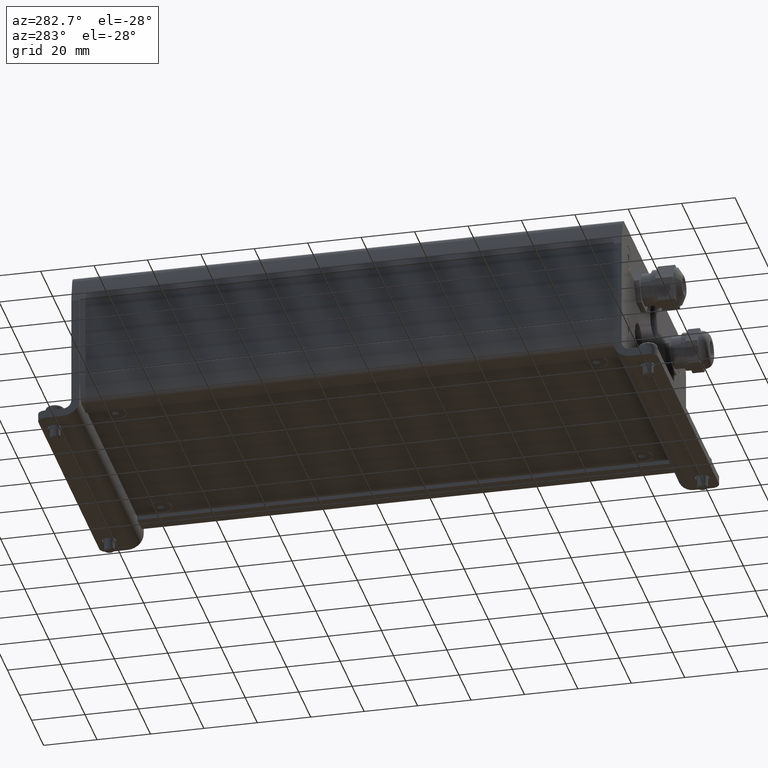
[diagram: clean part render]
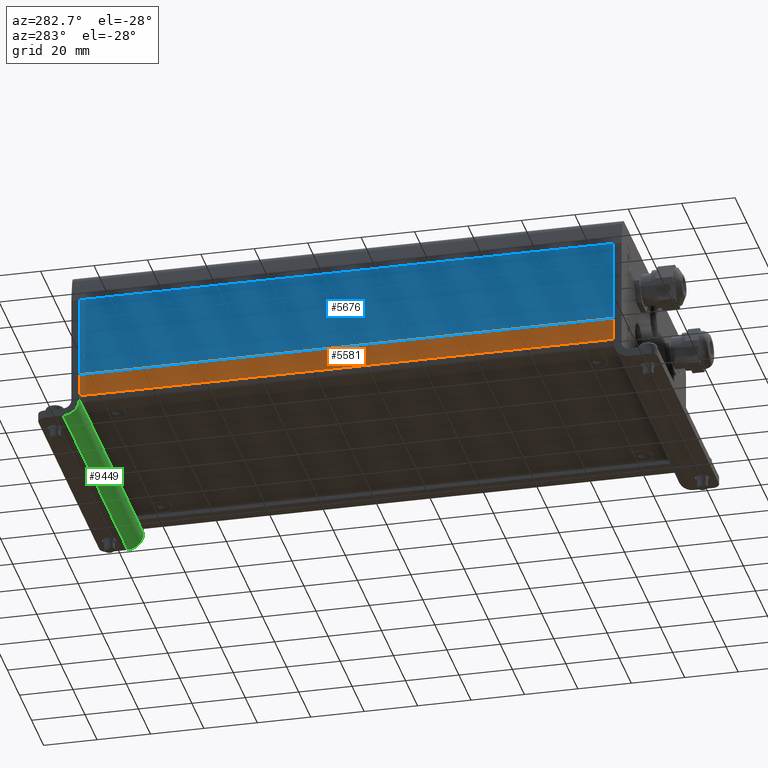
[diagram: same view with three faces highlighted in distinct colors, each labeled with its STEP entity id]
A machine part, auxiliary view with three faces highlighted in distinct colors.
Their STEP definitions:

[orange] entity #5581 — the highlighted cylindrical surface (partial cylindrical patch) has radius 114.5 mm, axis along (0, -1, 0).
#5514=CARTESIAN_POINT('',(-52.037496744025418,-23.618834080717061,99.999999999999943));
#5515=VERTEX_POINT('',#5514);
#5523=CARTESIAN_POINT('',(-52.037496744025418,-23.618834080717061,-100.0));
#5524=VERTEX_POINT('',#5523);
#5525=CARTESIAN_POINT('',(-52.037496744025418,-23.618834080717061,-100.0));
#5526=DIRECTION('',(0.0,0.0,1.0));
#5527=VECTOR('',#5526,199.999999999999940);
#5528=LINE('',#5525,#5527);
#5529=EDGE_CURVE('',#5524,#5515,#5528,.T.);
#5549=CARTESIAN_POINT('',(60.000000000000327,-4.243265E-013,-100.0));
#5550=DIRECTION('',(0.0,0.0,1.0));
#5551=DIRECTION('',(1.0,0.0,0.0));
#5552=AXIS2_PLACEMENT_3D('',#5549,#5550,#5551);
#5553=CYLINDRICAL_SURFACE('',#5552,114.500000000000000);
#5554=CARTESIAN_POINT('',(-53.416606555751926,-15.713795129684971,99.999999999999943));
#5555=VERTEX_POINT('',#5554);
#5556=CARTESIAN_POINT('',(60.000000000000327,-4.243265E-013,100.0));
#5557=DIRECTION('',(0.0,0.0,-1.0));
#5558=DIRECTION('',(1.0,0.0,0.0));
#5559=AXIS2_PLACEMENT_3D('',#5556,#5557,#5558);
#5560=CIRCLE('',#5559,114.500000000000000);
#5561=EDGE_CURVE('',#5515,#5555,#5560,.T.);
#5562=ORIENTED_EDGE('',*,*,#5561,.T.);
#5563=CARTESIAN_POINT('',(-53.416606555751926,-15.713795129684971,-100.0));
#5564=VERTEX_POINT('',#5563);
#5565=CARTESIAN_POINT('',(-53.416606555751926,-15.713795129684971,-100.0));
#5566=DIRECTION('',(0.0,0.0,1.0));
#5567=VECTOR('',#5566,199.999999999999940);
#5568=LINE('',#5565,#5567);
#5569=EDGE_CURVE('',#5564,#5555,#5568,.T.);
#5570=ORIENTED_EDGE('',*,*,#5569,.F.);
#5571=CARTESIAN_POINT('',(60.000000000000327,-4.243265E-013,-100.0));
#5572=DIRECTION('',(0.0,0.0,-1.0));
#5573=DIRECTION('',(1.0,0.0,0.0));
#5574=AXIS2_PLACEMENT_3D('',#5571,#5572,#5573);
#5575=CIRCLE('',#5574,114.500000000000000);
#5576=EDGE_CURVE('',#5524,#5564,#5575,.T.);
#5577=ORIENTED_EDGE('',*,*,#5576,.F.);
#5578=ORIENTED_EDGE('',*,*,#5529,.T.);
#5579=EDGE_LOOP('',(#5562,#5570,#5577,#5578));
#5580=FACE_OUTER_BOUND('',#5579,.T.);
#5581=ADVANCED_FACE('',(#5580),#5553,.T.);

[blue] entity #5676 — the highlighted planar face has unit normal (-1, 0, 0).
#5620=CARTESIAN_POINT('',(-53.000474070000308,-15.500032699497336,99.999999999999943));
#5621=VERTEX_POINT('',#5620);
#5628=CARTESIAN_POINT('',(-53.000474070000308,-15.500032699497336,-100.0));
#5629=VERTEX_POINT('',#5628);
#5630=CARTESIAN_POINT('',(-53.000474070000308,-15.500032699497336,-100.0));
#5631=DIRECTION('',(0.0,0.0,1.0));
#5632=VECTOR('',#5631,199.999999999999940);
#5633=LINE('',#5630,#5632);
#5634=EDGE_CURVE('',#5629,#5621,#5633,.T.);
#5646=CARTESIAN_POINT('',(-53.000474070000308,-15.500032699497336,-100.0));
#5647=DIRECTION('',(-1.0,0.0,0.0));
#5648=DIRECTION('',(0.0,0.0,1.0));
#5649=AXIS2_PLACEMENT_3D('',#5646,#5647,#5648);
#5650=PLANE('',#5649);
#5651=CARTESIAN_POINT('',(-53.000474069999683,15.500032700502665,99.999999999999943));
#5652=VERTEX_POINT('',#5651);
#5653=CARTESIAN_POINT('',(-53.000474070000308,-15.500032699497336,99.999999999999943));
#5654=DIRECTION('',(0.0,1.0,0.0));
#5655=VECTOR('',#5654,31.000065400000000);
#5656=LINE('',#5653,#5655);
#5657=EDGE_CURVE('',#5621,#5652,#5656,.T.);
#5658=ORIENTED_EDGE('',*,*,#5657,.T.);
#5659=CARTESIAN_POINT('',(-53.000474069999683,15.500032700502665,-100.0));
#5660=VERTEX_POINT('',#5659);
#5661=CARTESIAN_POINT('',(-53.000474069999683,15.500032700502665,-100.0));
#5662=DIRECTION('',(0.0,0.0,1.0));
#5663=VECTOR('',#5662,199.999999999999940);
#5664=LINE('',#5661,#5663);
#5665=EDGE_CURVE('',#5660,#5652,#5664,.T.);
#5666=ORIENTED_EDGE('',*,*,#5665,.F.);
#5667=CARTESIAN_POINT('',(-53.000474070000308,-15.500032699497336,-100.0));
#5668=DIRECTION('',(0.0,1.0,0.0));
#5669=VECTOR('',#5668,31.000065400000000);
#5670=LINE('',#5667,#5669);
#5671=EDGE_CURVE('',#5629,#5660,#5670,.T.);
#5672=ORIENTED_EDGE('',*,*,#5671,.F.);
#5673=ORIENTED_EDGE('',*,*,#5634,.T.);
#5674=EDGE_LOOP('',(#5658,#5666,#5672,#5673));
#5675=FACE_OUTER_BOUND('',#5674,.T.);
#5676=ADVANCED_FACE('',(#5675),#5650,.T.);

[green] entity #9449 — the highlighted cylindrical surface (edge-blend (fillet) strip) has radius 6 mm, axis along (-1, 0, 0).
#9408=CARTESIAN_POINT('',(25.750000000000323,-21.999999999999588,-4.0));
#9409=DIRECTION('',(-1.0,0.0,0.0));
#9410=DIRECTION('',(0.0,-0.707106781186547,0.707106781186547));
#9411=AXIS2_PLACEMENT_3D('',#9408,#9409,#9410);
#9412=CYLINDRICAL_SURFACE('',#9411,6.000000000000001);
#9413=CARTESIAN_POINT('',(-54.499999999999680,-21.999999999999588,2.0));
#9414=VERTEX_POINT('',#9413);
#9415=CARTESIAN_POINT('',(-54.499999999999673,-27.999999999999588,-4.0));
#9416=VERTEX_POINT('',#9415);
#9417=CARTESIAN_POINT('',(-54.499999999999673,-21.999999999999588,-4.0));
#9418=DIRECTION('',(1.000000000000000,0.0,0.0));
#9419=DIRECTION('',(0.0,-0.707106781186547,0.707106781186547));
#9420=AXIS2_PLACEMENT_3D('',#9417,#9418,#9419);
#9421=CIRCLE('',#9420,6.0);
#9422=EDGE_CURVE('',#9414,#9416,#9421,.T.);
#9423=ORIENTED_EDGE('',*,*,#9422,.T.);
#9424=CARTESIAN_POINT('',(52.500000000000320,-27.999999999999588,-4.0));
#9425=VERTEX_POINT('',#9424);
#9426=CARTESIAN_POINT('',(-54.499999999999673,-27.999999999999588,-4.0));
#9427=DIRECTION('',(1.0,0.0,0.0));
#9428=VECTOR('',#9427,107.0);
#9429=LINE('',#9426,#9428);
#9430=EDGE_CURVE('',#9416,#9425,#9429,.T.);
#9431=ORIENTED_EDGE('',*,*,#9430,.T.);
#9432=CARTESIAN_POINT('',(52.500000000000327,-21.999999999999588,2.0));
#9433=VERTEX_POINT('',#9432);
#9434=CARTESIAN_POINT('',(52.500000000000320,-21.999999999999588,-4.0));
#9435=DIRECTION('',(-1.000000000000000,0.0,0.0));
#9436=DIRECTION('',(0.0,-0.707106781186547,0.707106781186547));
#9437=AXIS2_PLACEMENT_3D('',#9434,#9435,#9436);
#9438=CIRCLE('',#9437,6.0);
#9439=EDGE_CURVE('',#9425,#9433,#9438,.T.);
#9440=ORIENTED_EDGE('',*,*,#9439,.T.);
#9441=CARTESIAN_POINT('',(52.500000000000327,-21.999999999999588,2.0));
#9442=DIRECTION('',(-1.0,0.0,0.0));
#9443=VECTOR('',#9442,107.0);
#9444=LINE('',#9441,#9443);
#9445=EDGE_CURVE('',#9433,#9414,#9444,.T.);
#9446=ORIENTED_EDGE('',*,*,#9445,.T.);
#9447=EDGE_LOOP('',(#9423,#9431,#9440,#9446));
#9448=FACE_OUTER_BOUND('',#9447,.T.);
#9449=ADVANCED_FACE('',(#9448),#9412,.T.);